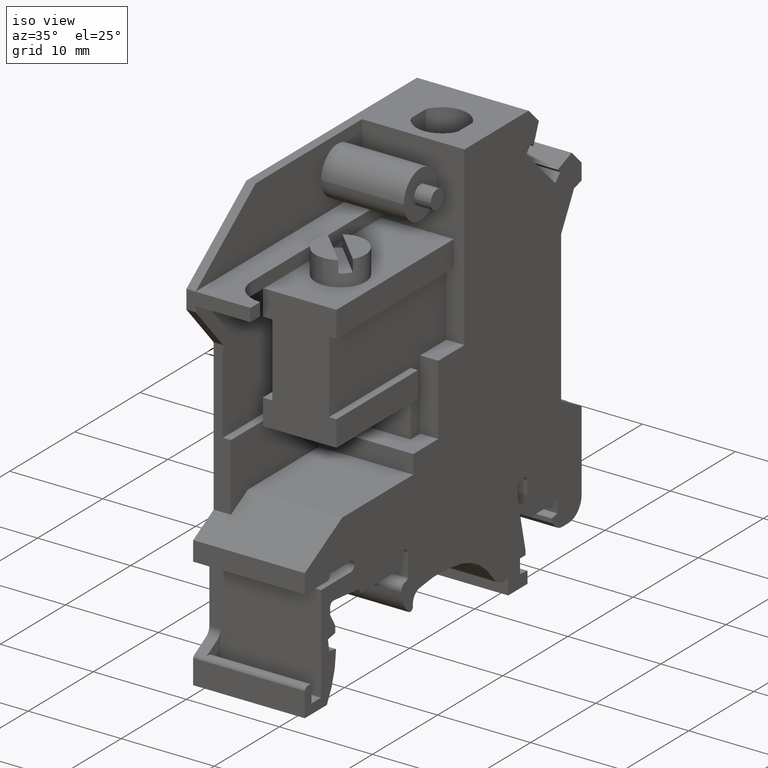
[diagram: clean part render]
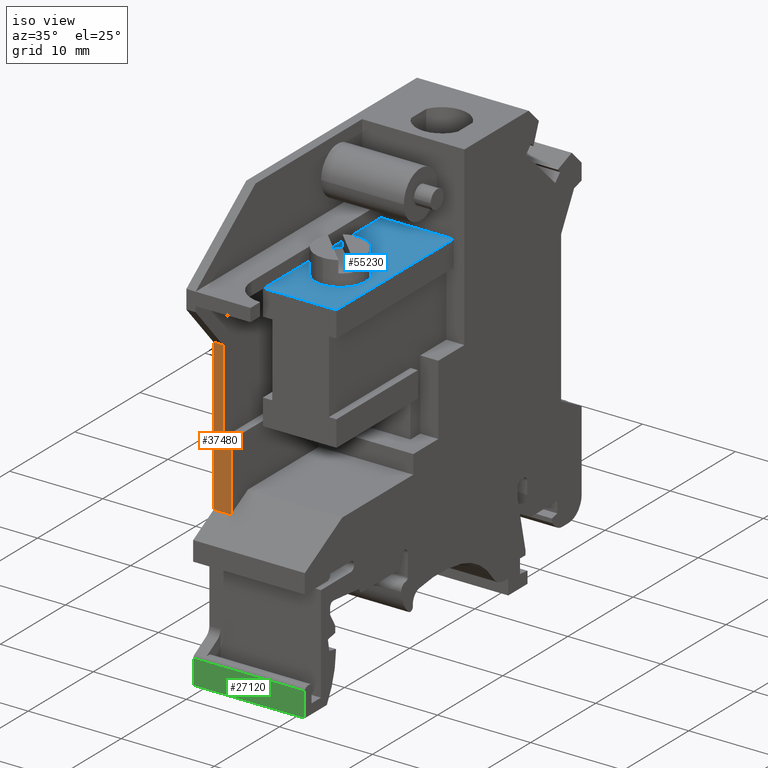
[diagram: same view with three faces highlighted in distinct colors, each labeled with its STEP entity id]
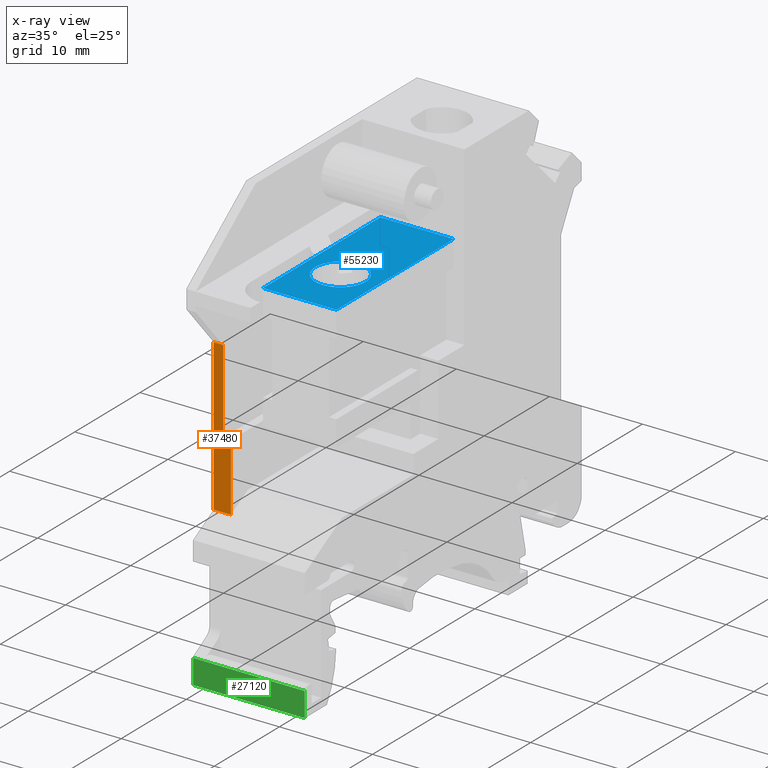
[diagram: x-ray of the same camera — body ghosted, the three highlighted faces saturated]
A machine part, iso view with three faces highlighted in distinct colors.
The next image is the same camera in x-ray (body ghosted, the three faces saturated) — at least one of them is partly hidden behind the body in this view.
Their STEP definitions:

[orange] entity #37480 — the highlighted planar face has unit normal (-0, -1, -0).
#32900=CARTESIAN_POINT('',(-162.249315429515,265.390890336955,0.));
#32910=DIRECTION('',(0.,0.,1.));
#32920=VECTOR('',#32910,1.);
#32930=LINE('',#32900,#32920);
#32940=CARTESIAN_POINT('',(-162.249315429515,265.390890336955,-12.));
#32950=VERTEX_POINT('',#32940);
#32960=CARTESIAN_POINT('',(-162.249315429515,265.390890336955,-10.15));
#32970=VERTEX_POINT('',#32960);
#32980=EDGE_CURVE('',#32950,#32970,#32930,.T.);
#33720=CARTESIAN_POINT('',(-162.249315429515,272.637846858691,-10.15));
#33730=VERTEX_POINT('',#33720);
#34020=CARTESIAN_POINT('',(-162.249315429515,0.,-10.15));
#34030=DIRECTION('',(-1.22070037156466E-15,1.,0.));
#34040=VECTOR('',#34030,1.);
#34050=LINE('',#34020,#34040);
#34060=EDGE_CURVE('',#32970,#33730,#34050,.T.);
#36550=CARTESIAN_POINT('',(-162.249315429515,272.637846858691,-11.));
#36560=VERTEX_POINT('',#36550);
#36590=CARTESIAN_POINT('',(-162.249315429515,86.824949462381,-11.));
#36600=DIRECTION('',(-1.22070037156466E-15,1.,0.));
#36610=VECTOR('',#36600,1.);
#36620=LINE('',#36590,#36610);
#36630=CARTESIAN_POINT('',(-162.249315429515,281.651800347058,-11.));
#36640=VERTEX_POINT('',#36630);
#36650=EDGE_CURVE('',#36560,#36640,#36620,.T.);
#37060=CARTESIAN_POINT('',(-162.249315429515,272.637846858691,-12.5));
#37070=DIRECTION('',(0.,0.,1.));
#37080=VECTOR('',#37070,1.);
#37090=LINE('',#37060,#37080);
#37100=EDGE_CURVE('',#36560,#33730,#37090,.T.);
#37230=CARTESIAN_POINT('',(-162.249315429515,265.530704001548,-12.5));
#37240=DIRECTION('',(-1.,-1.22070037156466E-15,-0.));
#37250=DIRECTION('',(-1.22070037156466E-15,1.,0.));
#37260=AXIS2_PLACEMENT_3D('',#37230,#37240,#37250);
#37270=PLANE('',#37260);
#37280=CARTESIAN_POINT('',(-162.249315429515,281.651800347058,0.));
#37290=DIRECTION('',(0.,0.,1.));
#37300=VECTOR('',#37290,1.);
#37310=LINE('',#37280,#37300);
#37320=CARTESIAN_POINT('',(-162.249315429515,281.651800347058,-12.));
#37330=VERTEX_POINT('',#37320);
#37340=EDGE_CURVE('',#37330,#36640,#37310,.T.);
#37350=ORIENTED_EDGE('',*,*,#37340,.F.);
#37360=ORIENTED_EDGE('',*,*,#36650,.T.);
#37370=ORIENTED_EDGE('',*,*,#37100,.F.);
#37380=ORIENTED_EDGE('',*,*,#34060,.T.);
#37390=ORIENTED_EDGE('',*,*,#32980,.T.);
#37400=CARTESIAN_POINT('',(-162.249315429515,0.,-12.));
#37410=DIRECTION('',(1.22070037156466E-15,-1.,0.));
#37420=VECTOR('',#37410,1.);
#37430=LINE('',#37400,#37420);
#37440=EDGE_CURVE('',#37330,#32950,#37430,.T.);
#37450=ORIENTED_EDGE('',*,*,#37440,.T.);
#37460=EDGE_LOOP('',(#37450,#37390,#37380,#37370,#37360,#37350));
#37470=FACE_OUTER_BOUND('',#37460,.T.);
#37480=ADVANCED_FACE('',(#37470),#37270,.T.);

[blue] entity #55230 — the highlighted planar face has unit normal (0, 0, -1).
#44480=CARTESIAN_POINT('',(-140.899315429515,286.420398280423,-1.15));
#44490=VERTEX_POINT('',#44480);
#44520=CARTESIAN_POINT('',(-140.899315429515,286.420398280423,0.));
#44530=DIRECTION('',(0.,0.,-1.));
#44540=VECTOR('',#44530,1.);
#44550=LINE('',#44520,#44540);
#44560=CARTESIAN_POINT('',(-140.899315429515,286.420398280423,-9.05));
#44570=VERTEX_POINT('',#44560);
#44580=EDGE_CURVE('',#44490,#44570,#44550,.T.);
#53410=CARTESIAN_POINT('',(-158.899315429515,286.420398280423,-9.05));
#53420=VERTEX_POINT('',#53410);
#53450=CARTESIAN_POINT('',(-158.899315429515,286.420398280423,-11.8));
#53460=DIRECTION('',(0.,0.,-1.));
#53470=VECTOR('',#53460,1.);
#53480=LINE('',#53450,#53470);
#53490=CARTESIAN_POINT('',(-158.899315429515,286.420398280423,-1.15));
#53500=VERTEX_POINT('',#53490);
#53510=EDGE_CURVE('',#53500,#53420,#53480,.T.);
#54760=CARTESIAN_POINT('',(-151.979216999529,286.420398280423,-9.05));
#54770=DIRECTION('',(1.,0.,0.));
#54780=VECTOR('',#54770,1.);
#54790=LINE('',#54760,#54780);
#54800=EDGE_CURVE('',#53420,#44570,#54790,.T.);
#54920=CARTESIAN_POINT('',(-158.899315429515,286.420398280423,-9.05));
#54930=DIRECTION('',(0.,-1.,0.));
#54940=DIRECTION('',(0.,0.,-1.));
#54950=AXIS2_PLACEMENT_3D('',#54920,#54930,#54940);
#54960=PLANE('',#54950);
#54970=CARTESIAN_POINT('',(-152.649315429515,286.420398280423,
-5.09999999999998));
#54980=DIRECTION('',(0.,-1.,0.));
#54990=DIRECTION('',(-1.,0.,1.53134210293125E-16));
#55000=AXIS2_PLACEMENT_3D('',#54970,#54980,#54990);
#55010=CIRCLE('',#55000,2.7);
#55020=CARTESIAN_POINT('',(-155.349315429515,286.420398280423,
-5.09999999999998));
#55030=VERTEX_POINT('',#55020);
#55040=CARTESIAN_POINT('',(-149.949315429515,286.420398280423,
-5.09999999999998));
#55050=VERTEX_POINT('',#55040);
#55060=EDGE_CURVE('',#55030,#55050,#55010,.T.);
#55070=ORIENTED_EDGE('',*,*,#55060,.T.);
#55080=EDGE_CURVE('',#55050,#55030,#55010,.T.);
#55090=ORIENTED_EDGE('',*,*,#55080,.T.);
#55100=EDGE_LOOP('',(#55090,#55070));
#55110=FACE_BOUND('',#55100,.T.);
#55120=ORIENTED_EDGE('',*,*,#53510,.F.);
#55130=ORIENTED_EDGE('',*,*,#54800,.F.);
#55140=ORIENTED_EDGE('',*,*,#44580,.T.);
#55150=CARTESIAN_POINT('',(-151.979216999529,286.420398280423,-1.15));
#55160=DIRECTION('',(1.,0.,0.));
#55170=VECTOR('',#55160,1.);
#55180=LINE('',#55150,#55170);
#55190=EDGE_CURVE('',#53500,#44490,#55180,.T.);
#55200=ORIENTED_EDGE('',*,*,#55190,.T.);
#55210=EDGE_LOOP('',(#55200,#55140,#55130,#55120));
#55220=FACE_OUTER_BOUND('',#55210,.T.);
#55230=ADVANCED_FACE('',(#55110,#55220),#54960,.F.);

[green] entity #27120 — the highlighted planar face has unit normal (0, -1, 0).
#26490=CARTESIAN_POINT('',(-165.399315429515,249.537846858691,-12.5));
#26500=DIRECTION('',(0.,0.,-1.));
#26510=VECTOR('',#26500,1.);
#26520=LINE('',#26490,#26510);
#26530=CARTESIAN_POINT('',(-165.399315429515,249.537846858691,
7.21644966006352E-16));
#26540=VERTEX_POINT('',#26530);
#26550=CARTESIAN_POINT('',(-165.399315429515,249.537846858691,-12.));
#26560=VERTEX_POINT('',#26550);
#26570=EDGE_CURVE('',#26540,#26560,#26520,.T.);
#26820=CARTESIAN_POINT('',(-165.399315429515,262.037846858691,-12.5));
#26830=DIRECTION('',(-1.,0.,0.));
#26840=DIRECTION('',(0.,1.,0.));
#26850=AXIS2_PLACEMENT_3D('',#26820,#26830,#26840);
#26860=PLANE('',#26850);
#26870=CARTESIAN_POINT('',(-165.399315429515,86.824949462381,
7.21644966006352E-16));
#26880=DIRECTION('',(0.,-1.,0.));
#26890=VECTOR('',#26880,1.);
#26900=LINE('',#26870,#26890);
#26910=CARTESIAN_POINT('',(-165.399315429515,252.177846858691,0.));
#26920=VERTEX_POINT('',#26910);
#26930=EDGE_CURVE('',#26920,#26540,#26900,.T.);
#26940=ORIENTED_EDGE('',*,*,#26930,.F.);
#26950=ORIENTED_EDGE('',*,*,#26570,.F.);
#26960=CARTESIAN_POINT('',(-165.399315429515,86.824949462381,-12.));
#26970=DIRECTION('',(0.,-1.,0.));
#26980=VECTOR('',#26970,1.);
#26990=LINE('',#26960,#26980);
#27000=CARTESIAN_POINT('',(-165.399315429515,252.177846858691,-12.));
#27010=VERTEX_POINT('',#27000);
#27020=EDGE_CURVE('',#27010,#26560,#26990,.T.);
#27030=ORIENTED_EDGE('',*,*,#27020,.T.);
#27040=CARTESIAN_POINT('',(-165.399315429515,252.177846858691,-11.3));
#27050=DIRECTION('',(0.,0.,1.));
#27060=VECTOR('',#27050,1.);
#27070=LINE('',#27040,#27060);
#27080=EDGE_CURVE('',#27010,#26920,#27070,.T.);
#27090=ORIENTED_EDGE('',*,*,#27080,.F.);
#27100=EDGE_LOOP('',(#27090,#27030,#26950,#26940));
#27110=FACE_OUTER_BOUND('',#27100,.T.);
#27120=ADVANCED_FACE('',(#27110),#26860,.T.);